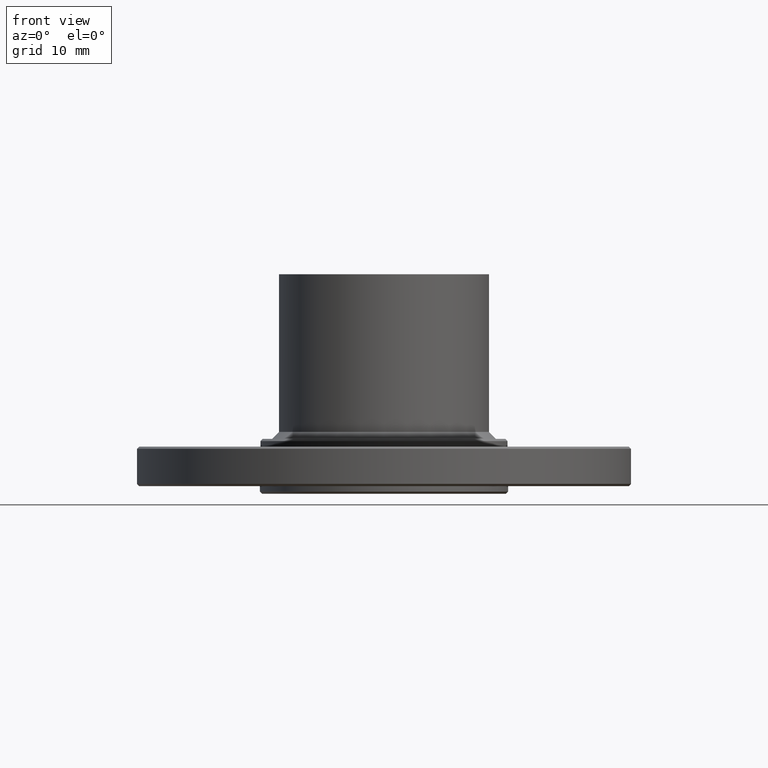
[diagram: clean part render]
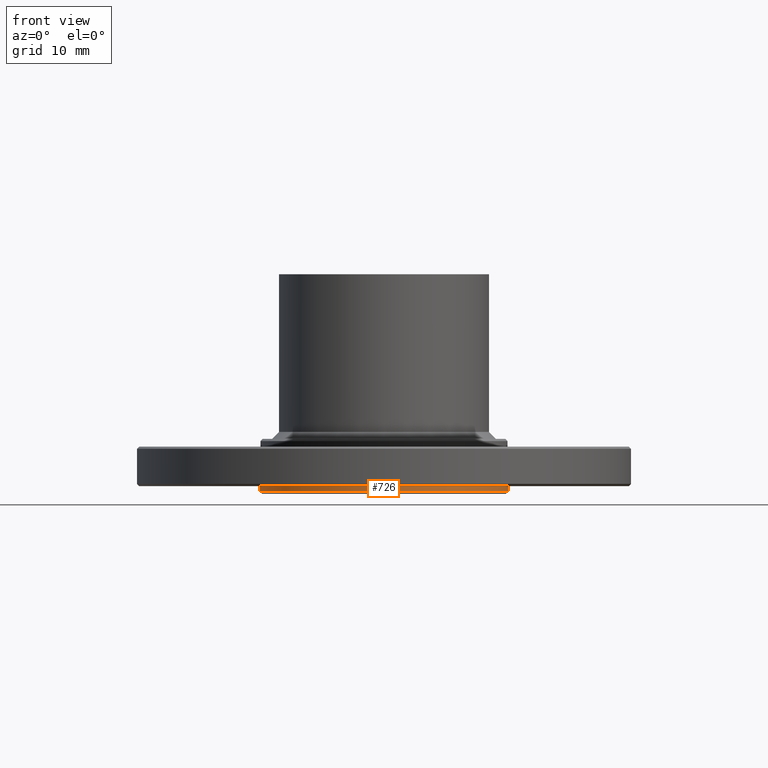
[diagram: same view with one face highlighted and labeled with its STEP entity id]
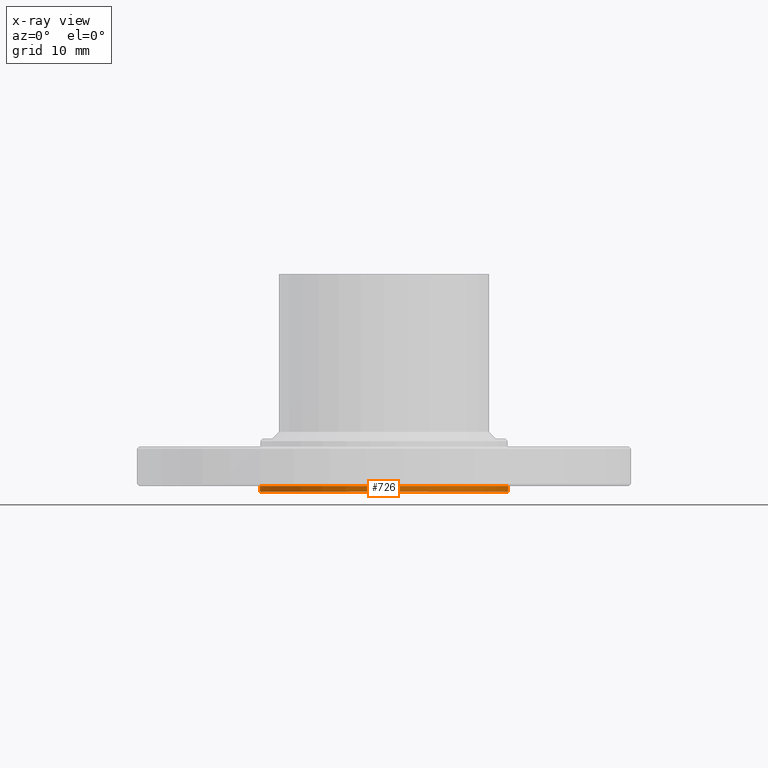
[diagram: x-ray of the same camera — body ghosted, the highlighted face saturated]
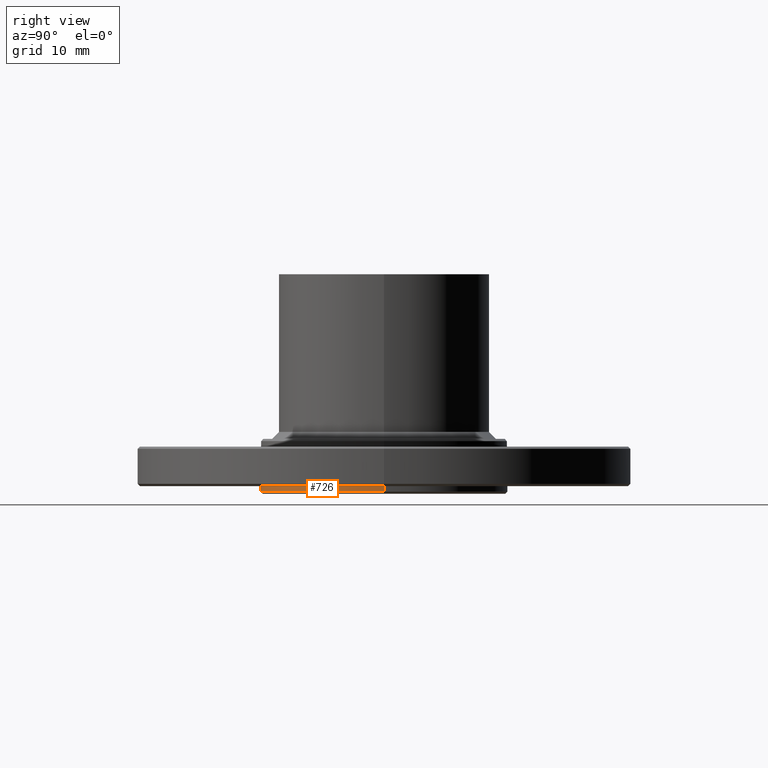
[diagram: same view with one face highlighted and labeled with its STEP entity id]
A machine part, front view. The second image highlights one B-rep face of the part: STEP entity #726.
The next image is the same camera in x-ray: the body ghosted, the highlighted face saturated — about 0% of this face is hidden behind the body in this view.
A second angle (right view) of the same face is appended — the face is thin or edge-on in the first view.
In plain terms, the highlighted cylindrical surface (partial cylindrical patch) has radius 14.3543 mm, axis along (0, 0, -1).
Its self-contained STEP definition (entity closure, byte-faithful):
#10 = CARTESIAN_POINT ( 'NONE',  ( 0.5651308118027867900, 6.920856397738281500E-017, 0.03500000000000003800 ) ) ;
#37 = CARTESIAN_POINT ( 'NONE',  ( 0.0000000000000000000, 0.0000000000000000000, 0.03500000000000003800 ) ) ;
#48 = EDGE_CURVE ( 'NONE', #990, #1120, #185, .T. ) ;
#77 = FACE_OUTER_BOUND ( 'NONE', #287, .T. ) ;
#95 = CIRCLE ( 'NONE', #794, 0.5651308118027867900 ) ;
#130 = DIRECTION ( 'NONE',  ( -1.000000000000000000, 0.0000000000000000000, 0.0000000000000000000 ) ) ;
#183 = CARTESIAN_POINT ( 'NONE',  ( 0.0000000000000000000, 0.0000000000000000000, 0.0000000000000000000 ) ) ;
#185 = LINE ( 'NONE', #879, #1141 ) ;
#270 = CARTESIAN_POINT ( 'NONE',  ( 0.0000000000000000000, 0.0000000000000000000, 0.01000000000000037100 ) ) ;
#282 = DIRECTION ( 'NONE',  ( 0.0000000000000000000, 0.0000000000000000000, -1.000000000000000000 ) ) ;
#287 = EDGE_LOOP ( 'NONE', ( #641, #830, #1063, #723 ) ) ;
#289 = CARTESIAN_POINT ( 'NONE',  ( 0.5651308118027867900, 6.920856397738281500E-017, 0.01000000000000037100 ) ) ;
#370 = DIRECTION ( 'NONE',  ( 1.000000000000000000, 0.0000000000000000000, 0.0000000000000000000 ) ) ;
#454 = VECTOR ( 'NONE', #1194, 39.37007874015748100 ) ;
#478 = AXIS2_PLACEMENT_3D ( 'NONE', #37, #708, #130 ) ;
#578 = LINE ( 'NONE', #736, #454 ) ;
#581 = EDGE_CURVE ( 'NONE', #998, #994, #578, .T. ) ;
#641 = ORIENTED_EDGE ( 'NONE', *, *, #581, .F. ) ;
#708 = DIRECTION ( 'NONE',  ( 0.0000000000000000000, 0.0000000000000000000, -1.000000000000000000 ) ) ;
#717 = CARTESIAN_POINT ( 'NONE',  ( -0.5651308118027867900, 0.0000000000000000000, 0.01000000000000037100 ) ) ;
#723 = ORIENTED_EDGE ( 'NONE', *, *, #1030, .T. ) ;
#726 = ADVANCED_FACE ( 'NONE', ( #77 ), #784, .T. ) ;
#736 = CARTESIAN_POINT ( 'NONE',  ( 0.5651308118027867900, 6.920856397738281500E-017, 0.0000000000000000000 ) ) ;
#763 = EDGE_CURVE ( 'NONE', #998, #990, #1007, .T. ) ;
#764 = DIRECTION ( 'NONE',  ( -1.000000000000000000, 0.0000000000000000000, 0.0000000000000000000 ) ) ;
#784 = CYLINDRICAL_SURFACE ( 'NONE', #1130, 0.5651308118027867900 ) ;
#794 = AXIS2_PLACEMENT_3D ( 'NONE', #270, #945, #370 ) ;
#830 = ORIENTED_EDGE ( 'NONE', *, *, #763, .T. ) ;
#879 = CARTESIAN_POINT ( 'NONE',  ( -0.5651308118027867900, 0.0000000000000000000, 0.0000000000000000000 ) ) ;
#889 = DIRECTION ( 'NONE',  ( 0.0000000000000000000, 0.0000000000000000000, -1.000000000000000000 ) ) ;
#945 = DIRECTION ( 'NONE',  ( 0.0000000000000000000, 0.0000000000000000000, 1.000000000000000000 ) ) ;
#966 = CARTESIAN_POINT ( 'NONE',  ( -0.5651308118027867900, 0.0000000000000000000, 0.03500000000000003800 ) ) ;
#990 = VERTEX_POINT ( 'NONE', #966 ) ;
#994 = VERTEX_POINT ( 'NONE', #289 ) ;
#998 = VERTEX_POINT ( 'NONE', #10 ) ;
#1007 = CIRCLE ( 'NONE', #478, 0.5651308118027867900 ) ;
#1030 = EDGE_CURVE ( 'NONE', #1120, #994, #95, .T. ) ;
#1063 = ORIENTED_EDGE ( 'NONE', *, *, #48, .T. ) ;
#1120 = VERTEX_POINT ( 'NONE', #717 ) ;
#1130 = AXIS2_PLACEMENT_3D ( 'NONE', #183, #282, #764 ) ;
#1141 = VECTOR ( 'NONE', #889, 39.37007874015748100 ) ;
#1194 = DIRECTION ( 'NONE',  ( 0.0000000000000000000, 0.0000000000000000000, -1.000000000000000000 ) ) ;